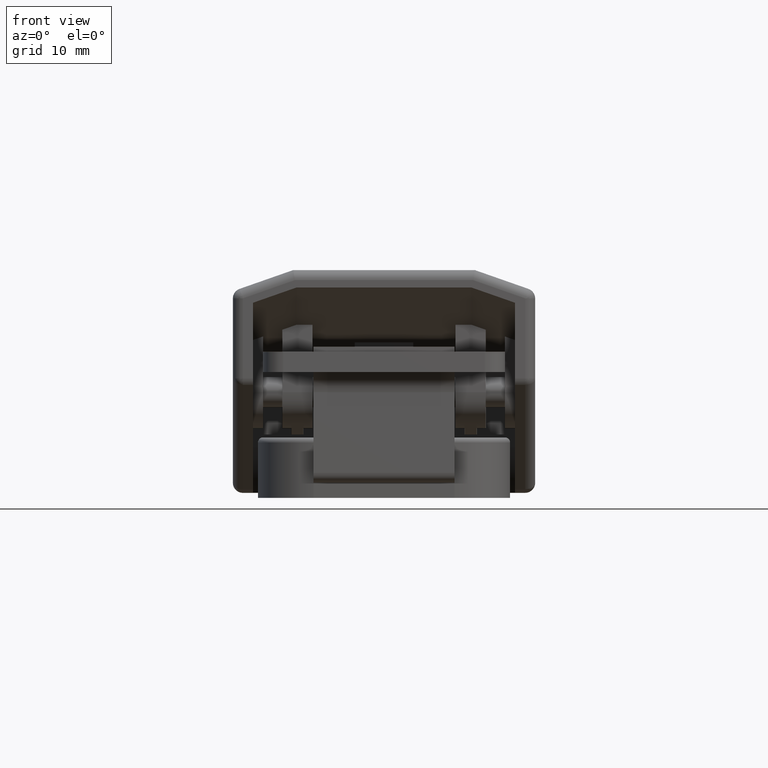
[diagram: clean part render]
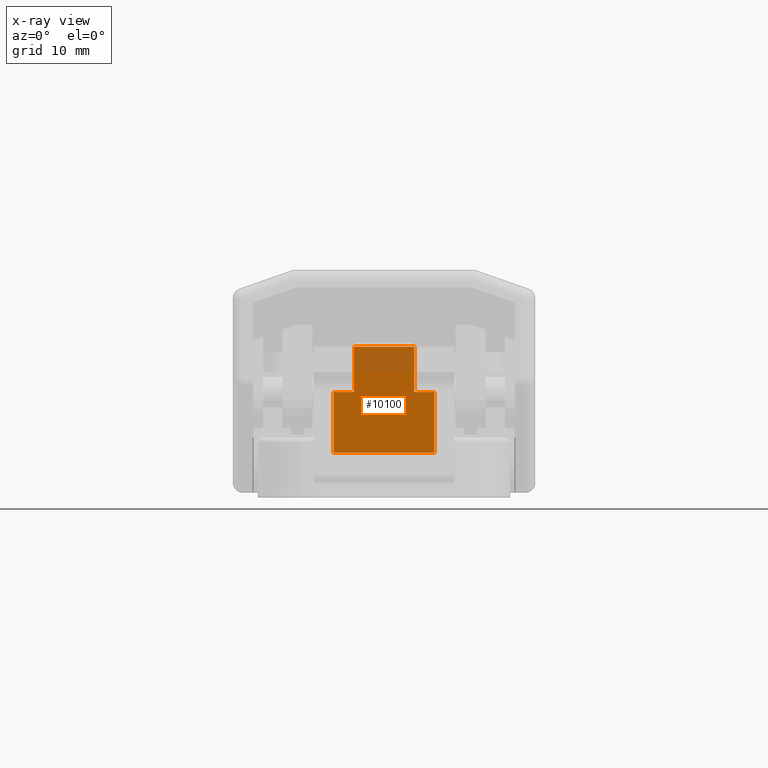
[diagram: x-ray — body ghosted, one internal face saturated and labeled with its STEP entity id]
A machine part, front view, then the same camera in x-ray: the body is ghosted and one INTERNAL B-rep face — a face not visible from any outside direction — is saturated and labeled: STEP entity #10100.
In plain terms, the highlighted planar face has unit normal (0, -1, 0).
Its self-contained STEP definition (entity closure, byte-faithful):
#364 = CARTESIAN_POINT ( 'NONE',  ( -5.000000000000000000, -46.00000000000000000, 5.499999999999996400 ) ) ;
#479 = LINE ( 'NONE', #2034, #11772 ) ;
#522 = FACE_OUTER_BOUND ( 'NONE', #4710, .T. ) ;
#563 = CARTESIAN_POINT ( 'NONE',  ( 5.000000000000000000, -46.00000000000000000, 5.499999999999996400 ) ) ;
#766 = DIRECTION ( 'NONE',  ( 0.0000000000000000000, -0.0000000000000000000, 1.000000000000000000 ) ) ;
#857 = ORIENTED_EDGE ( 'NONE', *, *, #7065, .F. ) ;
#1348 = VECTOR ( 'NONE', #4690, 1000.000000000000000 ) ;
#1451 = DIRECTION ( 'NONE',  ( 1.000000000000000000, -0.0000000000000000000, -0.0000000000000000000 ) ) ;
#1837 = VECTOR ( 'NONE', #9375, 1000.000000000000000 ) ;
#2034 = CARTESIAN_POINT ( 'NONE',  ( -500000.0000000000600, -46.00000000000000000, 9.999999999999991100 ) ) ;
#2054 = CARTESIAN_POINT ( 'NONE',  ( 5.000000000000000000, -46.00000000000000000, 5.499999999999996400 ) ) ;
#2067 = VERTEX_POINT ( 'NONE', #13231 ) ;
#2096 = CARTESIAN_POINT ( 'NONE',  ( -5.000000000000000000, -46.00000000000000000, -0.5000000000000057700 ) ) ;
#2772 = ORIENTED_EDGE ( 'NONE', *, *, #3591, .T. ) ;
#2886 = DIRECTION ( 'NONE',  ( 0.0000000000000000000, 0.0000000000000000000, 1.000000000000000000 ) ) ;
#2974 = ORIENTED_EDGE ( 'NONE', *, *, #6148, .T. ) ;
#3013 = VERTEX_POINT ( 'NONE', #13800 ) ;
#3052 = DIRECTION ( 'NONE',  ( 0.0000000000000000000, -1.000000000000000000, 0.0000000000000000000 ) ) ;
#3095 = LINE ( 'NONE', #2096, #14055 ) ;
#3192 = ORIENTED_EDGE ( 'NONE', *, *, #11284, .F. ) ;
#3242 = CARTESIAN_POINT ( 'NONE',  ( 3.000000000099589700, -46.00000000000000000, 9.999999999999991100 ) ) ;
#3288 = ORIENTED_EDGE ( 'NONE', *, *, #7525, .T. ) ;
#3572 = CARTESIAN_POINT ( 'NONE',  ( 5.000000000000000000, -46.00000000000000000, -0.5000000000000057700 ) ) ;
#3591 = EDGE_CURVE ( 'NONE', #11755, #11671, #3095, .T. ) ;
#3610 = VERTEX_POINT ( 'NONE', #3242 ) ;
#4690 = DIRECTION ( 'NONE',  ( -1.000000000000000000, -0.0000000000000000000, -0.0000000000000000000 ) ) ;
#4710 = EDGE_LOOP ( 'NONE', ( #12078, #2772, #11850, #3288, #2974, #9285, #857, #3192 ) ) ;
#5400 = VERTEX_POINT ( 'NONE', #8015 ) ;
#5663 = AXIS2_PLACEMENT_3D ( 'NONE', #9599, #3052, #10720 ) ;
#5784 = LINE ( 'NONE', #10546, #14161 ) ;
#6148 = EDGE_CURVE ( 'NONE', #5400, #3610, #479, .T. ) ;
#6432 = DIRECTION ( 'NONE',  ( 1.000000000000000000, 0.0000000000000000000, 0.0000000000000000000 ) ) ;
#6778 = VECTOR ( 'NONE', #766, 1000.000000000000000 ) ;
#7065 = EDGE_CURVE ( 'NONE', #12388, #10483, #7137, .T. ) ;
#7137 = LINE ( 'NONE', #2054, #12979 ) ;
#7362 = CARTESIAN_POINT ( 'NONE',  ( -2.999999999985902800, -46.00000000000000000, -0.5000000000000057700 ) ) ;
#7425 = PLANE ( 'NONE',  #5663 ) ;
#7525 = EDGE_CURVE ( 'NONE', #2067, #5400, #12631, .T. ) ;
#7545 = DIRECTION ( 'NONE',  ( 0.0000000000000000000, 0.0000000000000000000, 1.000000000000000000 ) ) ;
#8015 = CARTESIAN_POINT ( 'NONE',  ( -3.000000000000000000, -46.00000000000000000, 9.999999999999991100 ) ) ;
#8279 = CARTESIAN_POINT ( 'NONE',  ( 3.000000000000000000, -46.00000000000000000, -0.5000000000000057700 ) ) ;
#9285 = ORIENTED_EDGE ( 'NONE', *, *, #11766, .F. ) ;
#9375 = DIRECTION ( 'NONE',  ( 0.0000000000000000000, 0.0000000000000000000, 1.000000000000000000 ) ) ;
#9599 = CARTESIAN_POINT ( 'NONE',  ( 5.000000000000000000, -46.00000000000000000, -0.5000000000000057700 ) ) ;
#10066 = LINE ( 'NONE', #3572, #1348 ) ;
#10100 = ADVANCED_FACE ( 'NONE', ( #522 ), #7425, .F. ) ;
#10483 = VERTEX_POINT ( 'NONE', #12795 ) ;
#10527 = LINE ( 'NONE', #364, #12782 ) ;
#10546 = CARTESIAN_POINT ( 'NONE',  ( 5.000000000000000000, -46.00000000000000000, -0.5000000000000057700 ) ) ;
#10559 = LINE ( 'NONE', #8279, #1837 ) ;
#10720 = DIRECTION ( 'NONE',  ( 0.0000000000000000000, -0.0000000000000000000, -1.000000000000000000 ) ) ;
#10741 = EDGE_CURVE ( 'NONE', #3013, #11755, #10066, .T. ) ;
#10811 = DIRECTION ( 'NONE',  ( -1.000000000000000000, -0.0000000000000000000, -0.0000000000000000000 ) ) ;
#11284 = EDGE_CURVE ( 'NONE', #3013, #12388, #5784, .T. ) ;
#11671 = VERTEX_POINT ( 'NONE', #12483 ) ;
#11755 = VERTEX_POINT ( 'NONE', #13691 ) ;
#11766 = EDGE_CURVE ( 'NONE', #10483, #3610, #10559, .T. ) ;
#11772 = VECTOR ( 'NONE', #6432, 1000.000000000000000 ) ;
#11850 = ORIENTED_EDGE ( 'NONE', *, *, #12735, .T. ) ;
#12078 = ORIENTED_EDGE ( 'NONE', *, *, #10741, .T. ) ;
#12388 = VERTEX_POINT ( 'NONE', #563 ) ;
#12483 = CARTESIAN_POINT ( 'NONE',  ( -5.000000000000000000, -46.00000000000000000, 5.499999999999996400 ) ) ;
#12631 = LINE ( 'NONE', #7362, #6778 ) ;
#12735 = EDGE_CURVE ( 'NONE', #11671, #2067, #10527, .T. ) ;
#12782 = VECTOR ( 'NONE', #1451, 1000.000000000000000 ) ;
#12795 = CARTESIAN_POINT ( 'NONE',  ( 3.000000000000000000, -46.00000000000000000, 5.499999999999996400 ) ) ;
#12979 = VECTOR ( 'NONE', #10811, 1000.000000000000000 ) ;
#13231 = CARTESIAN_POINT ( 'NONE',  ( -2.999999999985902800, -46.00000000000000000, 5.499999999999996400 ) ) ;
#13691 = CARTESIAN_POINT ( 'NONE',  ( -5.000000000000000000, -46.00000000000000000, -0.5000000000000057700 ) ) ;
#13800 = CARTESIAN_POINT ( 'NONE',  ( 5.000000000000000000, -46.00000000000000000, -0.5000000000000057700 ) ) ;
#14055 = VECTOR ( 'NONE', #7545, 1000.000000000000000 ) ;
#14161 = VECTOR ( 'NONE', #2886, 1000.000000000000000 ) ;